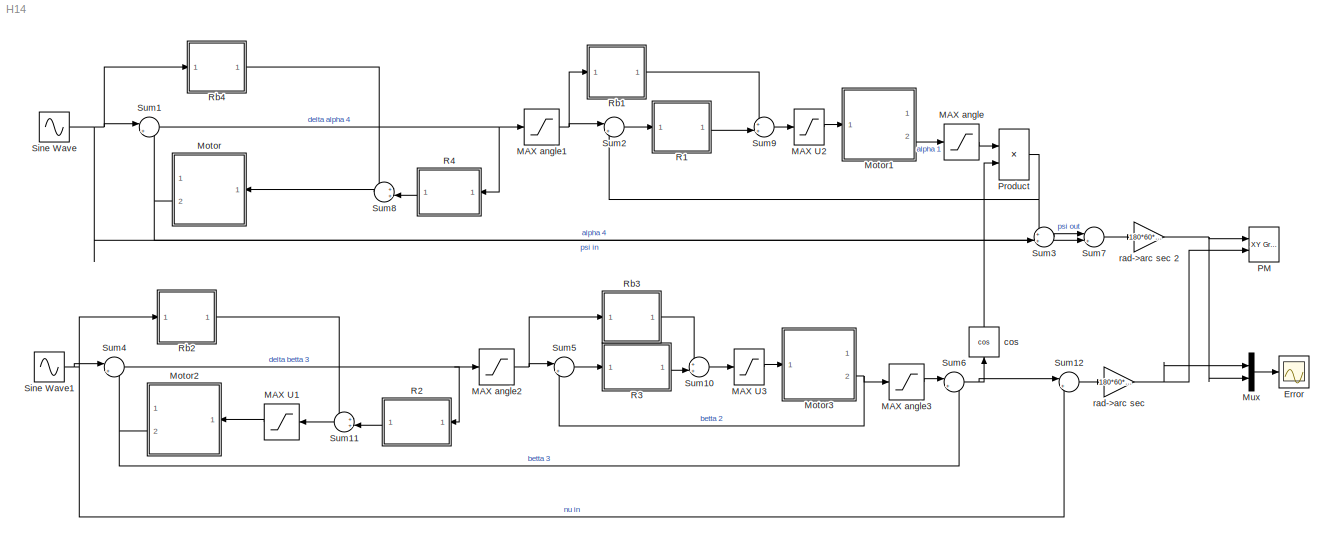
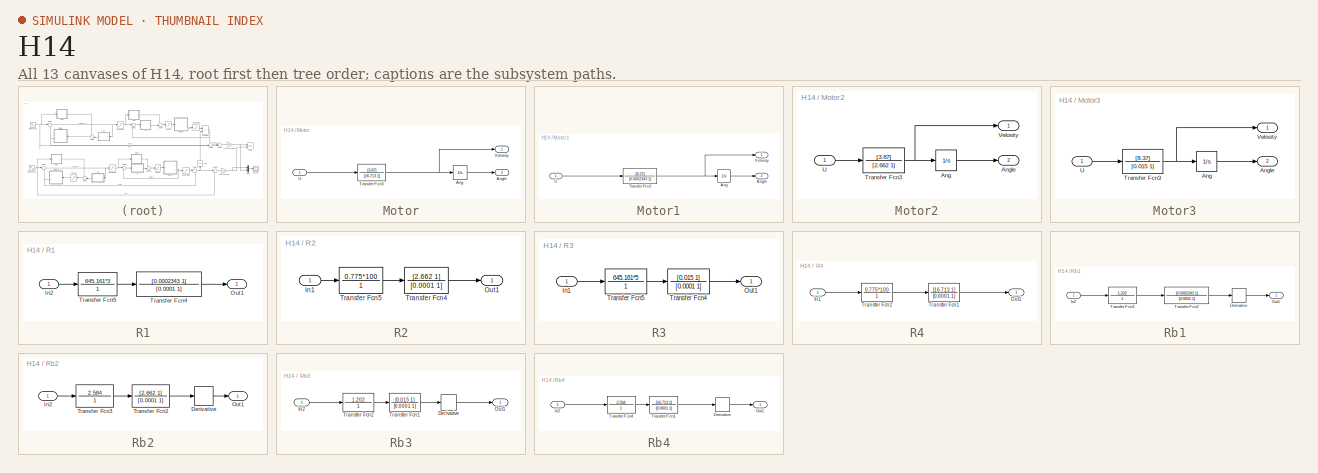
[diagram: thumbnail index - all 13 canvases of the model, root first then tree order]
MODEL H14
KIND model
BLOCK [Scope] Error
  DataFormat = StructureWithTime
  Floating = off
  MaxDataPoints = 500000
  NumInputPorts = 1
  Ports = [1]
  SampleTime = 0
  SaveName = ScopeData2
  YMax = 100
  YMin = -1300
  ZoomMode = yonly
BLOCK [Saturate] MAX U1
  LowerLimit = -27
  UpperLimit = 27
BLOCK [Saturate] MAX U2
  LowerLimit = -12
  UpperLimit = 12
BLOCK [Saturate] MAX U3
  LowerLimit = -12
  UpperLimit = 12
BLOCK [Saturate] MAX angle
  LowerLimit = -4/180*3.14
  UpperLimit = 4/180*3.14
BLOCK [Saturate] MAX angle1
  LowerLimit = -4/180*3.14
  UpperLimit = 4/180*3.14
BLOCK [Saturate] MAX angle2
  LowerLimit = -4/180*3.14
  UpperLimit = 4/180*3.14
BLOCK [Saturate] MAX angle3
  LowerLimit = -4/180*3.14
  UpperLimit = 4/180*3.14
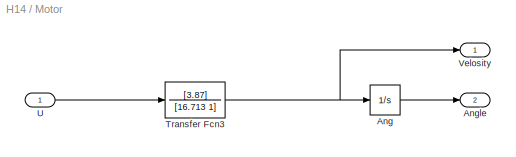
BLOCK [SubSystem] Motor
  FunctionWithSeparateData = off
  MaskHideContents = off
  MinAlgLoopOccurrences = off
  Opaque = off
  Ports = [1, 2]
  PropExecContextOutsideSubsystem = off
  RTWSystemCode = Auto
  RequestExecContextInheritance = off
  TreatAsAtomicUnit = on
BLOCK [Integrator] Motor/Ang
  Ports = [1, 1]
BLOCK [Outport] Motor/Angle
  IconDisplay = Port number
  OutDataType = fixdt(1, 16)
  OutScaling = 2^0
  Port = 2
BLOCK [TransferFcn] Motor/Transfer Fcn3
  Denominator = [16.713 1]
  Numerator = [3.87]
BLOCK [Inport] Motor/U
  IconDisplay = Port number
  OutDataType = fixdt(1, 16)
  OutScaling = 2^0
BLOCK [Outport] Motor/Velosity
  IconDisplay = Port number
  OutDataType = fixdt(1, 16)
  OutScaling = 2^0
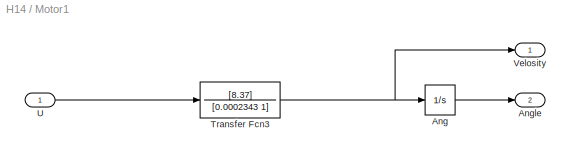
BLOCK [SubSystem] Motor1
  FunctionWithSeparateData = off
  MaskHideContents = off
  MinAlgLoopOccurrences = off
  Opaque = off
  Ports = [1, 2]
  PropExecContextOutsideSubsystem = off
  RTWSystemCode = Auto
  RequestExecContextInheritance = off
  TreatAsAtomicUnit = on
BLOCK [Integrator] Motor1/Ang
  Ports = [1, 1]
BLOCK [Outport] Motor1/Angle
  IconDisplay = Port number
  OutDataType = fixdt(1, 16)
  OutScaling = 2^0
  Port = 2
BLOCK [TransferFcn] Motor1/Transfer Fcn3
  Denominator = [0.0002343 1]
  Numerator = [8.37]
BLOCK [Inport] Motor1/U
  IconDisplay = Port number
  OutDataType = fixdt(1, 16)
  OutScaling = 2^0
BLOCK [Outport] Motor1/Velosity
  IconDisplay = Port number
  OutDataType = fixdt(1, 16)
  OutScaling = 2^0
BLOCK [SubSystem] Motor2
  FunctionWithSeparateData = off
  MaskHideContents = off
  MinAlgLoopOccurrences = off
  Opaque = off
  Ports = [1, 2]
  PropExecContextOutsideSubsystem = off
  RTWSystemCode = Auto
  RequestExecContextInheritance = off
  TreatAsAtomicUnit = on
BLOCK [Integrator] Motor2/Ang
  Ports = [1, 1]
BLOCK [Outport] Motor2/Angle
  IconDisplay = Port number
  OutDataType = fixdt(1, 16)
  OutScaling = 2^0
  Port = 2
BLOCK [TransferFcn] Motor2/Transfer Fcn3
  Denominator = [2.662 1]
  Numerator = [3.87]
BLOCK [Inport] Motor2/U
  IconDisplay = Port number
  OutDataType = fixdt(1, 16)
  OutScaling = 2^0
BLOCK [Outport] Motor2/Velosity
  IconDisplay = Port number
  OutDataType = fixdt(1, 16)
  OutScaling = 2^0
BLOCK [SubSystem] Motor3
  FunctionWithSeparateData = off
  MaskHideContents = off
  MinAlgLoopOccurrences = off
  Opaque = off
  Ports = [1, 2]
  PropExecContextOutsideSubsystem = off
  RTWSystemCode = Auto
  RequestExecContextInheritance = off
  TreatAsAtomicUnit = on
BLOCK [Integrator] Motor3/Ang
  Ports = [1, 1]
BLOCK [Outport] Motor3/Angle
  IconDisplay = Port number
  OutDataType = fixdt(1, 16)
  OutScaling = 2^0
  Port = 2
BLOCK [TransferFcn] Motor3/Transfer Fcn3
  Denominator = [0.015 1]
  Numerator = [8.37]
BLOCK [Inport] Motor3/U
  IconDisplay = Port number
  OutDataType = fixdt(1, 16)
  OutScaling = 2^0
BLOCK [Outport] Motor3/Velosity
  IconDisplay = Port number
  OutDataType = fixdt(1, 16)
  OutScaling = 2^0
BLOCK [Mux] Mux
  DisplayOption = bar
  Inputs = 2
  Ports = [2, 1]
BLOCK [Reference] PM  REF=simulink/Sinks/XY Graph
  FunctionWithSeparateData = off
  Ports = [2]
  RTWMemSecDataConstants = Inherit from model
  RTWMemSecDataInternal = Inherit from model
  RTWMemSecDataParameters = Inherit from model
  RTWMemSecFuncExecute = Inherit from model
  RTWMemSecFuncInitTerm = Inherit from model
  ShowPortLabels = FromPortIcon
  SourceBlock = simulink/Sinks/XY Graph
  SourceType = XY scope.
  SystemSampleTime = -1
  st = -1
  xmax = 3*1280
  xmin = -3*1280
  ymax = 3*960
  ymin = -3*960
BLOCK [Product] Product
  InputSameDT = off
  OutDataType = fixdt(1, 16)
  OutDataTypeMode = Inherit via internal rule
  OutDataTypeStr = Inherit: Inherit via internal rule
  OutScaling = 2^0
  Ports = [2, 1]
  SaturateOnIntegerOverflow = off
BLOCK [SubSystem] R1
  FunctionWithSeparateData = off
  MaskHideContents = off
  MinAlgLoopOccurrences = off
  Opaque = off
  Ports = [1, 1]
  PropExecContextOutsideSubsystem = off
  RTWSystemCode = Auto
  RequestExecContextInheritance = off
BLOCK [Inport] R1/In2
  IconDisplay = Port number
  OutDataType = fixdt(1, 16)
  OutScaling = 2^0
BLOCK [Outport] R1/Out1
  IconDisplay = Port number
  OutDataType = fixdt(1, 16)
  OutScaling = 2^0
BLOCK [TransferFcn] R1/Transfer Fcn4
  Denominator = [0.0001 1]
  Numerator = [0.0002343 1]
BLOCK [TransferFcn] R1/Transfer Fcn5
  Denominator = 1
  Numerator = 645.161*3
BLOCK [SubSystem] R2
  FunctionWithSeparateData = off
  MaskHideContents = off
  MinAlgLoopOccurrences = off
  Opaque = off
  Ports = [1, 1]
  PropExecContextOutsideSubsystem = off
  RTWSystemCode = Auto
  RequestExecContextInheritance = off
BLOCK [Inport] R2/In1
  IconDisplay = Port number
  OutDataType = fixdt(1, 16)
  OutScaling = 2^0
BLOCK [Outport] R2/Out1
  IconDisplay = Port number
  OutDataType = fixdt(1, 16)
  OutScaling = 2^0
BLOCK [TransferFcn] R2/Transfer Fcn4
  Denominator = [0.0001 1]
  Numerator = [2.662 1]
BLOCK [TransferFcn] R2/Transfer Fcn5
  Denominator = 1
  Numerator = 0.775*100
BLOCK [SubSystem] R3
  FunctionWithSeparateData = off
  MaskHideContents = off
  MinAlgLoopOccurrences = off
  Opaque = off
  Ports = [1, 1]
  PropExecContextOutsideSubsystem = off
  RTWSystemCode = Auto
  RequestExecContextInheritance = off
BLOCK [Inport] R3/In1
  IconDisplay = Port number
  OutDataType = fixdt(1, 16)
  OutScaling = 2^0
BLOCK [Outport] R3/Out1
  IconDisplay = Port number
  OutDataType = fixdt(1, 16)
  OutScaling = 2^0
BLOCK [TransferFcn] R3/Transfer Fcn4
  Denominator = [0.0001 1]
  Numerator = [0.015 1]
BLOCK [TransferFcn] R3/Transfer Fcn5
  Denominator = 1
  Numerator = 645.161*5
BLOCK [SubSystem] R4
  FunctionWithSeparateData = off
  MaskHideContents = off
  MinAlgLoopOccurrences = off
  Opaque = off
  Ports = [1, 1]
  PropExecContextOutsideSubsystem = off
  RTWSystemCode = Auto
  RequestExecContextInheritance = off
BLOCK [Inport] R4/In1
  IconDisplay = Port number
  OutDataType = fixdt(1, 16)
  OutScaling = 2^0
BLOCK [Outport] R4/Out1
  IconDisplay = Port number
  OutDataType = fixdt(1, 16)
  OutScaling = 2^0
BLOCK [TransferFcn] R4/Transfer Fcn1
  Denominator = [0.0001 1]
  Numerator = [16.713 1]
BLOCK [TransferFcn] R4/Transfer Fcn2
  Denominator = 1
  Numerator = 0.775*100
BLOCK [SubSystem] Rb1
  FunctionWithSeparateData = off
  MaskHideContents = off
  MinAlgLoopOccurrences = off
  Opaque = off
  Ports = [1, 1]
  PropExecContextOutsideSubsystem = off
  RTWSystemCode = Auto
  RequestExecContextInheritance = off
BLOCK [Derivative] Rb1/Derivative
BLOCK [Inport] Rb1/In2
  IconDisplay = Port number
  OutDataType = fixdt(1, 16)
  OutScaling = 2^0
BLOCK [Outport] Rb1/Out1
  IconDisplay = Port number
  OutDataType = fixdt(1, 16)
  OutScaling = 2^0
BLOCK [TransferFcn] Rb1/Transfer Fcn2
  Denominator = [0.0001 1]
  Numerator = [0.0002343 1]
BLOCK [TransferFcn] Rb1/Transfer Fcn3
  Denominator = 1
  Numerator = 1.202
BLOCK [SubSystem] Rb2
  FunctionWithSeparateData = off
  MaskHideContents = off
  MinAlgLoopOccurrences = off
  Opaque = off
  Ports = [1, 1]
  PropExecContextOutsideSubsystem = off
  RTWSystemCode = Auto
  RequestExecContextInheritance = off
BLOCK [Derivative] Rb2/Derivative
BLOCK [Inport] Rb2/In2
  IconDisplay = Port number
  OutDataType = fixdt(1, 16)
  OutScaling = 2^0
BLOCK [Outport] Rb2/Out1
  IconDisplay = Port number
  OutDataType = fixdt(1, 16)
  OutScaling = 2^0
BLOCK [TransferFcn] Rb2/Transfer Fcn2
  Denominator = [0.0001 1]
  Numerator = [2.662 1]
BLOCK [TransferFcn] Rb2/Transfer Fcn3
  Denominator = 1
  Numerator = 2.584
BLOCK [SubSystem] Rb3
  FunctionWithSeparateData = off
  MaskHideContents = off
  MinAlgLoopOccurrences = off
  Opaque = off
  Ports = [1, 1]
  PropExecContextOutsideSubsystem = off
  RTWSystemCode = Auto
  RequestExecContextInheritance = off
BLOCK [Derivative] Rb3/Derivative
BLOCK [Inport] Rb3/In2
  IconDisplay = Port number
  OutDataType = fixdt(1, 16)
  OutScaling = 2^0
BLOCK [Outport] Rb3/Out1
  IconDisplay = Port number
  OutDataType = fixdt(1, 16)
  OutScaling = 2^0
BLOCK [TransferFcn] Rb3/Transfer Fcn1
  Denominator = [0.0001 1]
  Numerator = [0.015 1]
BLOCK [TransferFcn] Rb3/Transfer Fcn2
  Denominator = 1
  Numerator = 1.202
BLOCK [SubSystem] Rb4
  FunctionWithSeparateData = off
  MaskHideContents = off
  MinAlgLoopOccurrences = off
  Opaque = off
  Ports = [1, 1]
  PropExecContextOutsideSubsystem = off
  RTWSystemCode = Auto
  RequestExecContextInheritance = off
BLOCK [Derivative] Rb4/Derivative
BLOCK [Inport] Rb4/In2
  IconDisplay = Port number
  OutDataType = fixdt(1, 16)
  OutScaling = 2^0
BLOCK [Outport] Rb4/Out1
  IconDisplay = Port number
  OutDataType = fixdt(1, 16)
  OutScaling = 2^0
BLOCK [TransferFcn] Rb4/Transfer Fcn1
  Denominator = [0.0001 1]
  Numerator = [16.713 1]
BLOCK [TransferFcn] Rb4/Transfer Fcn4
  Denominator = 1
  Numerator = 2.584
BLOCK [Sin] Sine Wave
  Amplitude = 1
  Bias = 0
  Frequency = 1
  Offset = 0
  Phase = 0
  Ports = [0, 1]
  SampleTime = 0
  Samples = 10
BLOCK [Sin] Sine Wave1
  Amplitude = 1
  Bias = 0
  Frequency = 1
  Offset = 0
  Phase = 0
  Ports = [0, 1]
  SampleTime = 0
  Samples = 10
BLOCK [Sum] Sum1
  IconShape = round
  InputSameDT = off
  Inputs = |+-
  OutDataType = fixdt(1, 16)
  OutDataTypeMode = Inherit via internal rule
  OutDataTypeStr = Inherit: Inherit via internal rule
  OutScaling = 2^0
  Ports = [2, 1]
  SaturateOnIntegerOverflow = off
BLOCK [Sum] Sum10
  IconShape = round
  InputSameDT = off
  Inputs = ++|
  OutDataType = fixdt(1, 16)
  OutDataTypeMode = Inherit via internal rule
  OutDataTypeStr = Inherit: Inherit via internal rule
  OutScaling = 2^0
  Ports = [2, 1]
  SaturateOnIntegerOverflow = off
BLOCK [Sum] Sum11
  IconShape = round
  InputSameDT = off
  Inputs = ++|
  OutDataType = fixdt(1, 16)
  OutDataTypeMode = Inherit via internal rule
  OutDataTypeStr = Inherit: Inherit via internal rule
  OutScaling = 2^0
  Ports = [2, 1]
  SaturateOnIntegerOverflow = off
BLOCK [Sum] Sum12
  IconShape = round
  InputSameDT = off
  Inputs = |+-
  OutDataType = fixdt(1, 16)
  OutDataTypeMode = Inherit via internal rule
  OutDataTypeStr = Inherit: Inherit via internal rule
  OutScaling = 2^0
  Ports = [2, 1]
  SaturateOnIntegerOverflow = off
BLOCK [Sum] Sum2
  IconShape = round
  InputSameDT = off
  Inputs = |+-
  OutDataType = fixdt(1, 16)
  OutDataTypeMode = Inherit via internal rule
  OutDataTypeStr = Inherit: Inherit via internal rule
  OutScaling = 2^0
  Ports = [2, 1]
  SaturateOnIntegerOverflow = off
BLOCK [Sum] Sum3
  IconShape = round
  InputSameDT = off
  Inputs = ++|
  OutDataType = fixdt(1, 16)
  OutDataTypeMode = Inherit via internal rule
  OutDataTypeStr = Inherit: Inherit via internal rule
  OutScaling = 2^0
  Ports = [2, 1]
  SaturateOnIntegerOverflow = off
BLOCK [Sum] Sum4
  IconShape = round
  InputSameDT = off
  Inputs = |+-
  OutDataType = fixdt(1, 16)
  OutDataTypeMode = Inherit via internal rule
  OutDataTypeStr = Inherit: Inherit via internal rule
  OutScaling = 2^0
  Ports = [2, 1]
  SaturateOnIntegerOverflow = off
BLOCK [Sum] Sum5
  IconShape = round
  InputSameDT = off
  Inputs = |+-
  OutDataType = fixdt(1, 16)
  OutDataTypeMode = Inherit via internal rule
  OutDataTypeStr = Inherit: Inherit via internal rule
  OutScaling = 2^0
  Ports = [2, 1]
  SaturateOnIntegerOverflow = off
BLOCK [Sum] Sum6
  IconShape = round
  InputSameDT = off
  Inputs = |++
  OutDataType = fixdt(1, 16)
  OutDataTypeMode = Inherit via internal rule
  OutDataTypeStr = Inherit: Inherit via internal rule
  OutScaling = 2^0
  Ports = [2, 1]
  SaturateOnIntegerOverflow = off
BLOCK [Sum] Sum7
  IconShape = round
  InputSameDT = off
  Inputs = |+-
  OutDataType = fixdt(1, 16)
  OutDataTypeMode = Inherit via internal rule
  OutDataTypeStr = Inherit: Inherit via internal rule
  OutScaling = 2^0
  Ports = [2, 1]
  SaturateOnIntegerOverflow = off
BLOCK [Sum] Sum8
  IconShape = round
  InputSameDT = off
  Inputs = ++|
  OutDataType = fixdt(1, 16)
  OutDataTypeMode = Inherit via internal rule
  OutDataTypeStr = Inherit: Inherit via internal rule
  OutScaling = 2^0
  Ports = [2, 1]
  SaturateOnIntegerOverflow = off
BLOCK [Sum] Sum9
  IconShape = round
  InputSameDT = off
  Inputs = ++|
  OutDataType = fixdt(1, 16)
  OutDataTypeMode = Inherit via internal rule
  OutDataTypeStr = Inherit: Inherit via internal rule
  OutScaling = 2^0
  Ports = [2, 1]
  SaturateOnIntegerOverflow = off
BLOCK [Trigonometry] cos
  Operator = cos
  Ports = [1, 1]
BLOCK [Gain] rad->arc sec
  Gain = 180*60*60/pi
  OutDataType = fixdt(1, 16)
  OutDataTypeMode = Inherit via internal rule
  OutDataTypeStr = Inherit: Inherit via internal rule
  OutScaling = 2^0
  ParamDataTypeStr = Inherit: Inherit via internal rule
  ParameterDataType = fixdt(1, 16)
  ParameterDataTypeMode = Inherit via internal rule
  ParameterScaling = 2^0
  SaturateOnIntegerOverflow = off
BLOCK [Gain] rad->arc sec 2
  Gain = 180*60*60/pi
  OutDataType = fixdt(1, 16)
  OutDataTypeMode = Inherit via internal rule
  OutDataTypeStr = Inherit: Inherit via internal rule
  OutScaling = 2^0
  ParamDataTypeStr = Inherit: Inherit via internal rule
  ParameterDataType = fixdt(1, 16)
  ParameterDataTypeMode = Inherit via internal rule
  ParameterScaling = 2^0
  SaturateOnIntegerOverflow = off
LINE MAX U1:1 -> Motor2:1
LINE MAX U2:1 -> Motor1:1
LINE MAX U3:1 -> Motor3:1
NET MAX angle1:1 -> Rb1:1, Sum2:1
NET MAX angle2:1 -> Rb3:1, Sum5:1
LINE MAX angle3:1 -> Sum6:1
LINE MAX angle:1 -> Product:1
LINE Motor/Ang:1 -> Motor/Angle:1
NET Motor/Transfer Fcn3:1 -> Motor/Ang:1, Motor/Velosity:1
LINE Motor/U:1 -> Motor/Transfer Fcn3:1
LINE Motor1/Ang:1 -> Motor1/Angle:1
NET Motor1/Transfer Fcn3:1 -> Motor1/Ang:1, Motor1/Velosity:1
LINE Motor1/U:1 -> Motor1/Transfer Fcn3:1
LINE Motor1:2 -> MAX angle:1
LINE Motor2/Ang:1 -> Motor2/Angle:1
NET Motor2/Transfer Fcn3:1 -> Motor2/Ang:1, Motor2/Velosity:1
LINE Motor2/U:1 -> Motor2/Transfer Fcn3:1
NET Motor2:2 -> Sum4:2, Sum6:2
LINE Motor3/Ang:1 -> Motor3/Angle:1
NET Motor3/Transfer Fcn3:1 -> Motor3/Ang:1, Motor3/Velosity:1
LINE Motor3/U:1 -> Motor3/Transfer Fcn3:1
NET Motor3:2 -> MAX angle3:1, Sum5:2
NET Motor:2 -> Sum1:2, Sum3:2
LINE Mux:1 -> Error:1
NET Product:1 -> Sum2:2, Sum3:1
LINE R1/In2:1 -> R1/Transfer Fcn5:1
LINE R1/Transfer Fcn4:1 -> R1/Out1:1
LINE R1/Transfer Fcn5:1 -> R1/Transfer Fcn4:1
LINE R1:1 -> Sum9:2
LINE R2/In1:1 -> R2/Transfer Fcn5:1
LINE R2/Transfer Fcn4:1 -> R2/Out1:1
LINE R2/Transfer Fcn5:1 -> R2/Transfer Fcn4:1
LINE R2:1 -> Sum11:2
LINE R3/In1:1 -> R3/Transfer Fcn5:1
LINE R3/Transfer Fcn4:1 -> R3/Out1:1
LINE R3/Transfer Fcn5:1 -> R3/Transfer Fcn4:1
LINE R3:1 -> Sum10:2
LINE R4/In1:1 -> R4/Transfer Fcn2:1
LINE R4/Transfer Fcn1:1 -> R4/Out1:1
LINE R4/Transfer Fcn2:1 -> R4/Transfer Fcn1:1
LINE R4:1 -> Sum8:2
LINE Rb1/Derivative:1 -> Rb1/Out1:1
LINE Rb1/In2:1 -> Rb1/Transfer Fcn3:1
LINE Rb1/Transfer Fcn2:1 -> Rb1/Derivative:1
LINE Rb1/Transfer Fcn3:1 -> Rb1/Transfer Fcn2:1
LINE Rb1:1 -> Sum9:1
LINE Rb2/Derivative:1 -> Rb2/Out1:1
LINE Rb2/In2:1 -> Rb2/Transfer Fcn3:1
LINE Rb2/Transfer Fcn2:1 -> Rb2/Derivative:1
LINE Rb2/Transfer Fcn3:1 -> Rb2/Transfer Fcn2:1
LINE Rb2:1 -> Sum11:1
LINE Rb3/Derivative:1 -> Rb3/Out1:1
LINE Rb3/In2:1 -> Rb3/Transfer Fcn2:1
LINE Rb3/Transfer Fcn1:1 -> Rb3/Derivative:1
LINE Rb3/Transfer Fcn2:1 -> Rb3/Transfer Fcn1:1
LINE Rb3:1 -> Sum10:1
LINE Rb4/Derivative:1 -> Rb4/Out1:1
LINE Rb4/In2:1 -> Rb4/Transfer Fcn4:1
LINE Rb4/Transfer Fcn1:1 -> Rb4/Derivative:1
LINE Rb4/Transfer Fcn4:1 -> Rb4/Transfer Fcn1:1
LINE Rb4:1 -> Sum8:1
NET Sine Wave1:1 -> Rb2:1, Sum12:2, Sum4:1
NET Sine Wave:1 -> Rb4:1, Sum1:1, Sum7:2
LINE Sum10:1 -> MAX U3:1
LINE Sum11:1 -> MAX U1:1
LINE Sum12:1 -> rad->arc sec:1
NET Sum1:1 -> MAX angle1:1, R4:1
LINE Sum2:1 -> R1:1
LINE Sum3:1 -> Sum7:1
NET Sum4:1 -> MAX angle2:1, R2:1
LINE Sum5:1 -> R3:1
NET Sum6:1 -> Sum12:1, cos:1
LINE Sum7:1 -> rad->arc sec 2:1
LINE Sum8:1 -> Motor:1
LINE Sum9:1 -> MAX U2:1
LINE cos:1 -> Product:2
NET rad->arc sec 2:1 -> Mux:2, PM:1
NET rad->arc sec:1 -> Mux:1, PM:2
note: NET lines group one-source signal fan-out (src -> all destinations, sorted); 1:1 wires keep LINE
